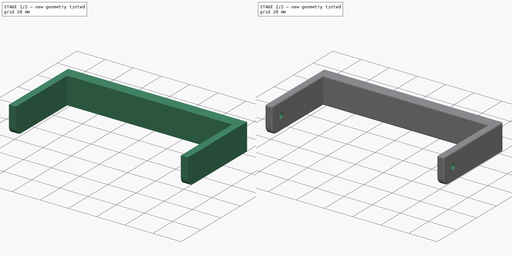
[diagram: build sequence overview — one tinted view per stage of 2, left to right]
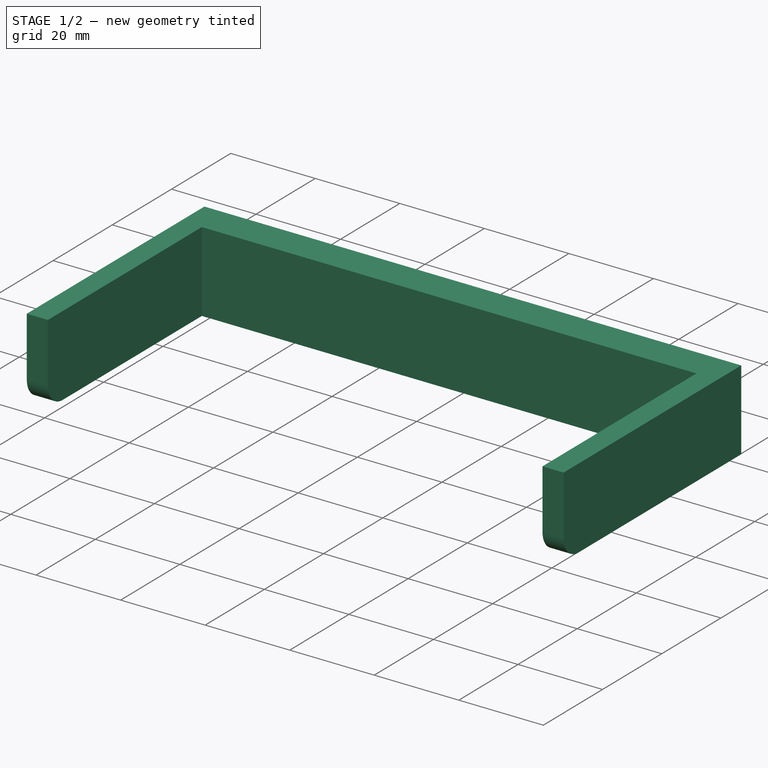
[diagram: stage 1 of 2 — iso view after this stage's code; geometry added in this stage tinted green]
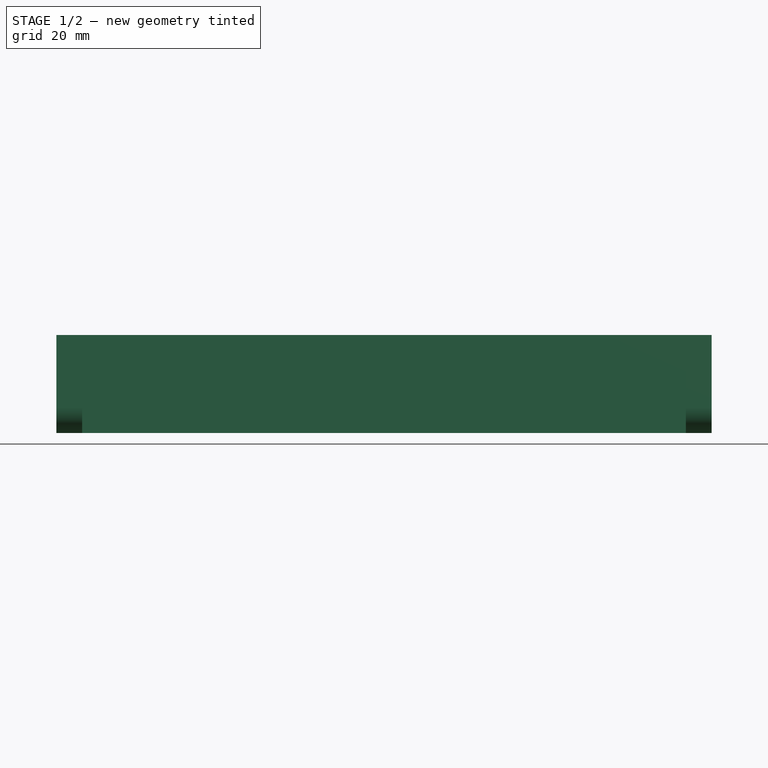
[diagram: stage 1 of 2 — front view after this stage's code; geometry added in this stage tinted green]
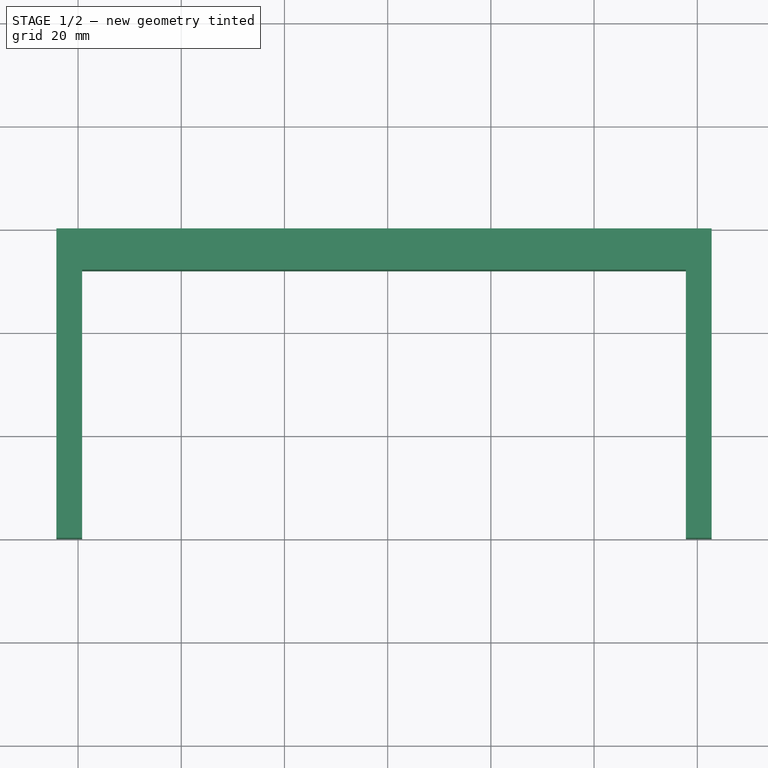
[diagram: stage 1 of 2 — top view after this stage's code; geometry added in this stage tinted green]
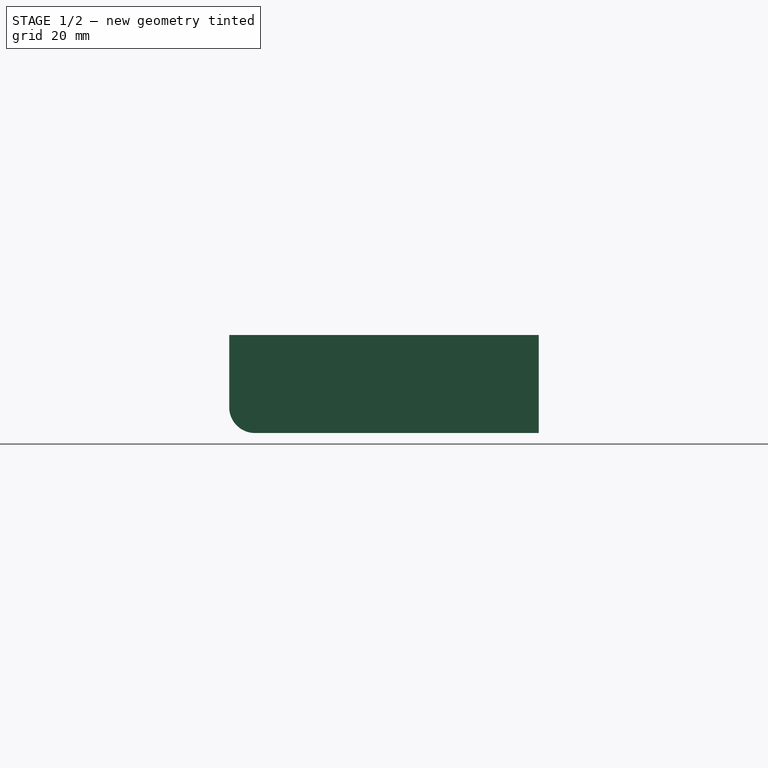
[diagram: stage 1 of 2 — right view after this stage's code; geometry added in this stage tinted green]
FCSTD DOCUMENT  (FreeCAD 0.16R)
Label: poignet
License: All rights reserved
LicenseURL: http://en.wikipedia.org/wiki/All_rights_reserved
objects: Sketcher::SketchObject×2, PartDesign::Fillet×2, PartDesign::Pad×1, PartDesign::Pocket×1
note: 8 computed .brp shape members not serialized (recipe doc carries the construction recipe); baked Part::Feature solids carry a one-line shape summary decoded from their .brp

FEATURE [Sketcher::SketchObject] Sketch  label="main form"
  sketch-geometry (8):
    g0: LineSegment StartX=-104.21 StartY=0 StartZ=0 EndX=-99.2105 EndY=0 EndZ=0
    g1: LineSegment StartX=-99.2105 StartY=0 StartZ=0 EndX=-99.2105 EndY=52 EndZ=0
    g2: LineSegment StartX=-99.2105 StartY=52 StartZ=0 EndX=17.7895 EndY=52 EndZ=0
    g3: LineSegment StartX=17.7895 StartY=52 StartZ=0 EndX=17.7895 EndY=0 EndZ=0
    g4: LineSegment StartX=17.7895 StartY=0 StartZ=0 EndX=22.7895 EndY=0 EndZ=0
    g5: LineSegment StartX=22.7895 StartY=0 StartZ=0 EndX=22.7895 EndY=60 EndZ=0
    g6: LineSegment StartX=22.7895 StartY=60 StartZ=0 EndX=-104.21 EndY=60 EndZ=0
    g7: LineSegment StartX=-104.21 StartY=60 StartZ=0 EndX=-104.21 EndY=0 EndZ=0
  constraints (22):
    c: PointOnObject(g0,g-1)
    c: Coincident(g0,g1)
    c: Vertical(g1)
    c: Coincident(g1,g2)
    c: Horizontal(g2)
    c: Coincident(g2,g3)
    c: Coincident(g4,g5)
    c: Vertical(g5)
    c: Coincident(g5,g6)
    c: Coincident(g6,g7)
    c: Coincident(g7,g0)
    c: Vertical(g7)
    c: DistanceX(g6,g6) = 127
    c: DistanceX(g2,g2) = 117
    c: DistanceX(g4,g4) = 5
    c: DistanceX(g0,g0) = 5
    c: DistanceY(g3,g3) = 52
    c: Horizontal(g0)
    c: Horizontal(g4)
    c: Parallel(g4,g6)
    c: Perpendicular(g2,g3)
    c: DistanceY(g1,g1) = 52
FEATURE [PartDesign::Pad] Pad
  Length = 19
  Length2 = 100
  Sketch = -> Sketch
  Type = 0
FEATURE [PartDesign::Fillet] Fillet  label="5mm fillet"
  Base = -> Pad [Edge3,Edge15]
  Radius = 5
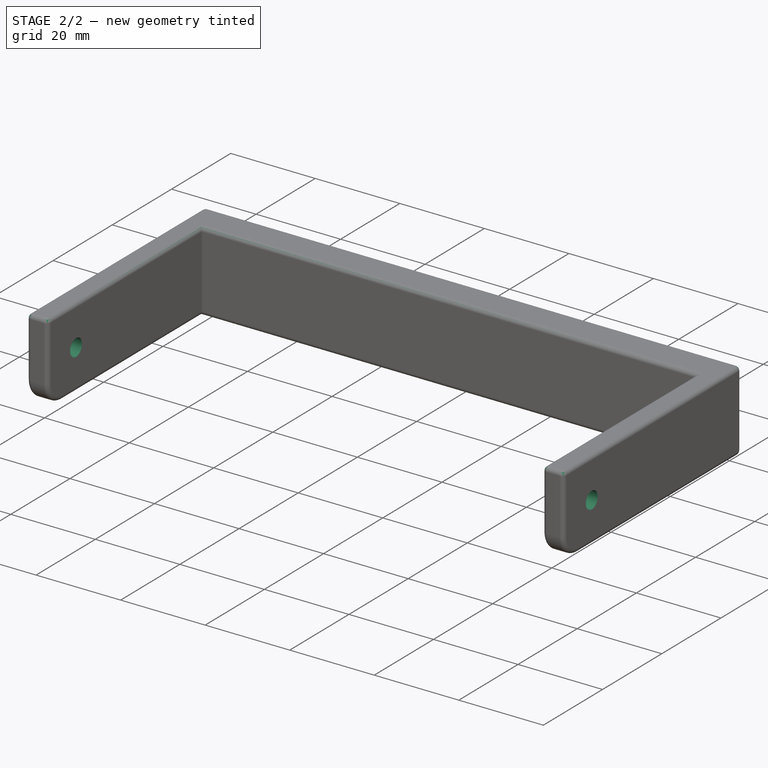
[diagram: stage 2 of 2 — iso view after this stage's code; geometry added in this stage tinted green]
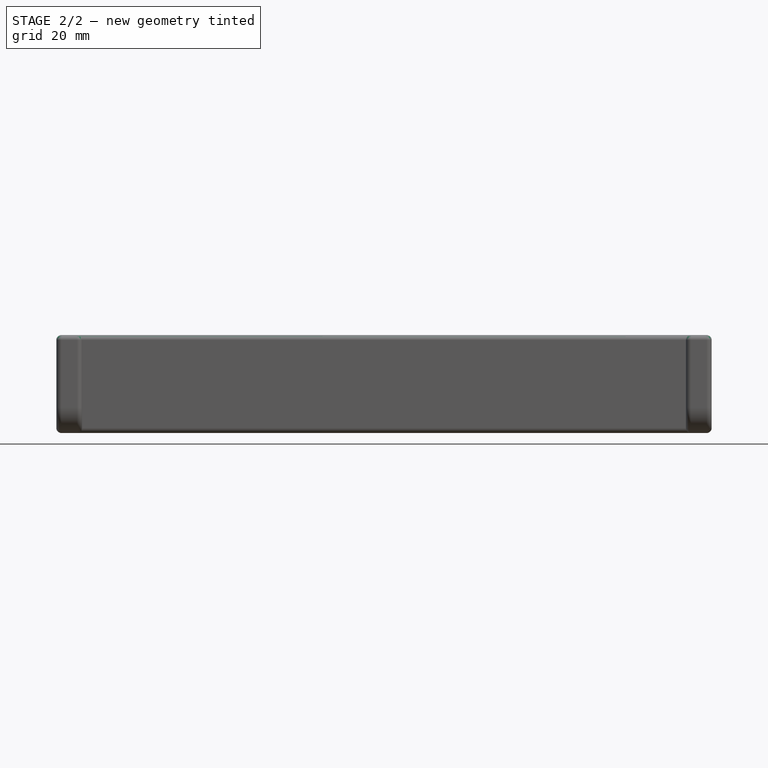
[diagram: stage 2 of 2 — front view after this stage's code; geometry added in this stage tinted green]
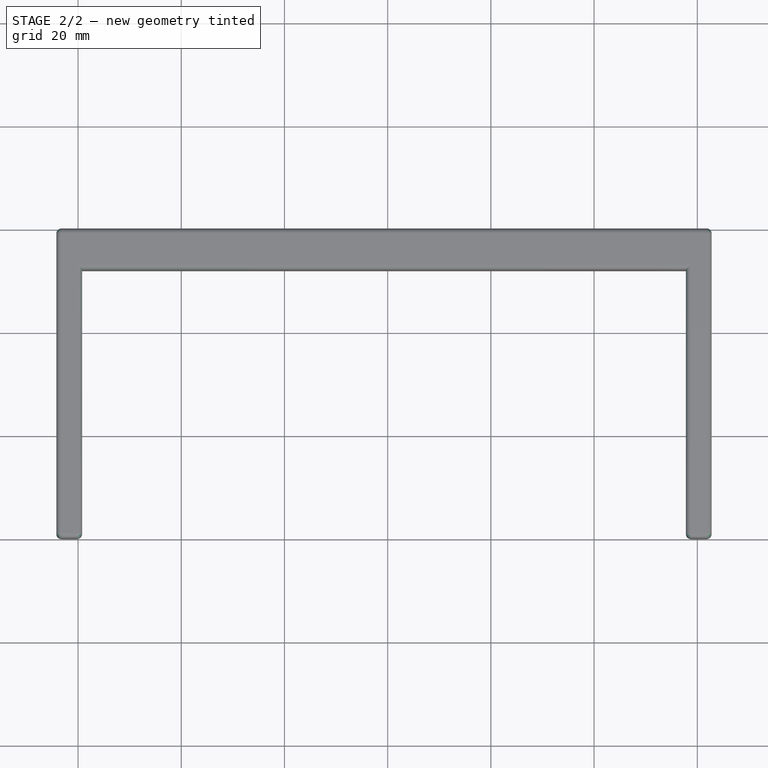
[diagram: stage 2 of 2 — top view after this stage's code; geometry added in this stage tinted green]
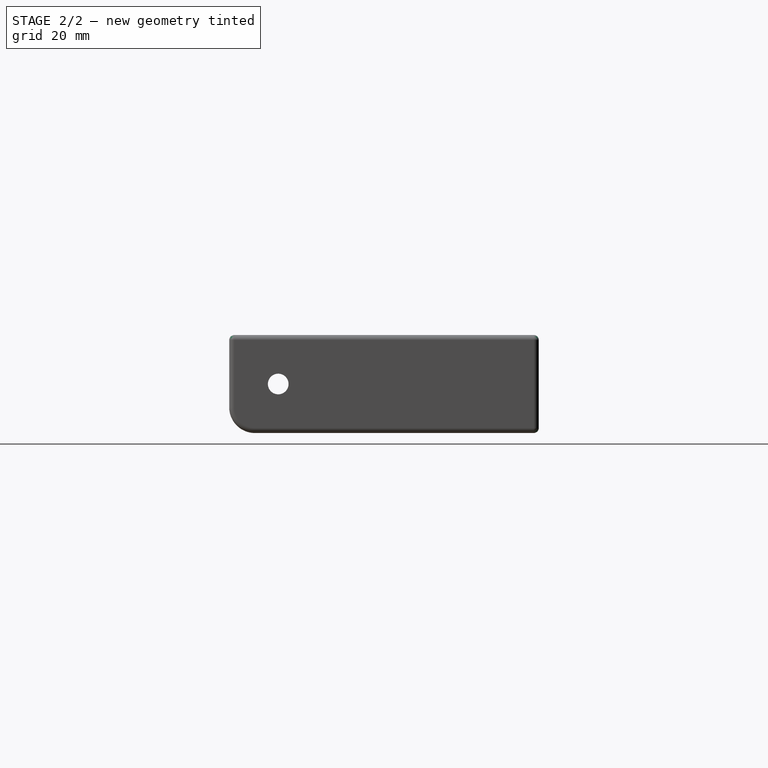
[diagram: stage 2 of 2 — right view after this stage's code; geometry added in this stage tinted green]
FEATURE [PartDesign::Fillet] Fillet001  label="1mm fillet"
  Base = -> Fillet [Edge19,Edge20,Edge17,Edge11,Edge12,Edge7,Edge21,Edge23,Edge30,Edge27,Edge15,Edge24,Edge16,Edge8,Edge13,Edge14,Edge3,Edge1,Edge4,Edge6,Edge29,Edge26,Edge5,Edge10]
  Radius = 1
FEATURE [Sketcher::SketchObject] Sketch001  label="hole"
  Placement = pos=(22.7895,0,0) rot=(0.57735,0.57735,0.57735;2.0944rad)
  Support = -> Fillet001 [Face34]
  sketch-geometry (1):
    g0: Circle CenterX=9.5 CenterY=9.5 CenterZ=0 NormalX=0 NormalY=0 NormalZ=1 Radius=2
  constraints (3):
    c: DistanceX(g0) = 9.5
    c: DistanceY(g-1,g0) = 9.5
    c: Radius(g0) = 2
FEATURE [PartDesign::Pocket] Pocket
  Length = 32
  Sketch = -> Sketch001
  Type = 1
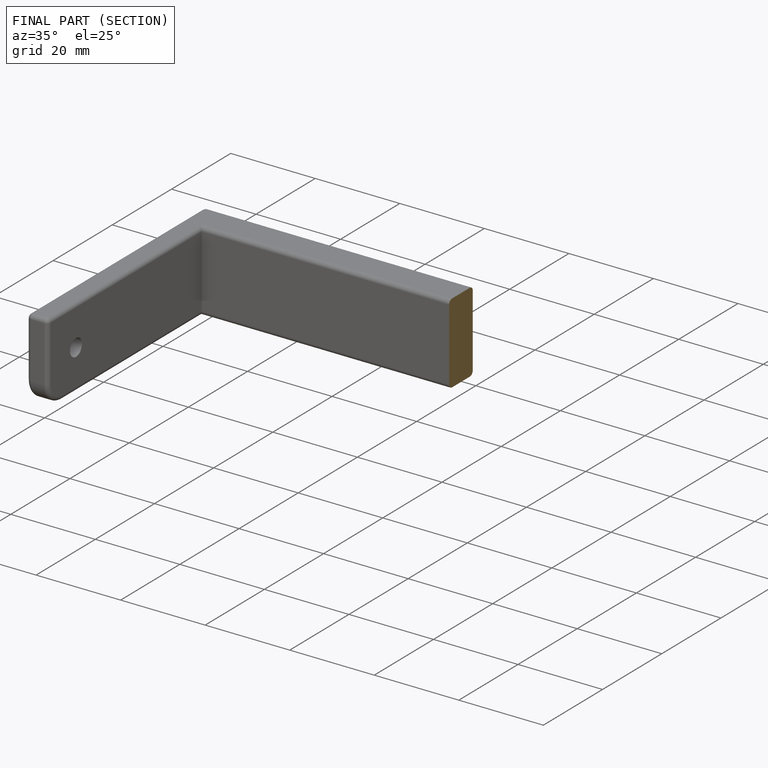
[diagram: finished part — half-section view (interior)]
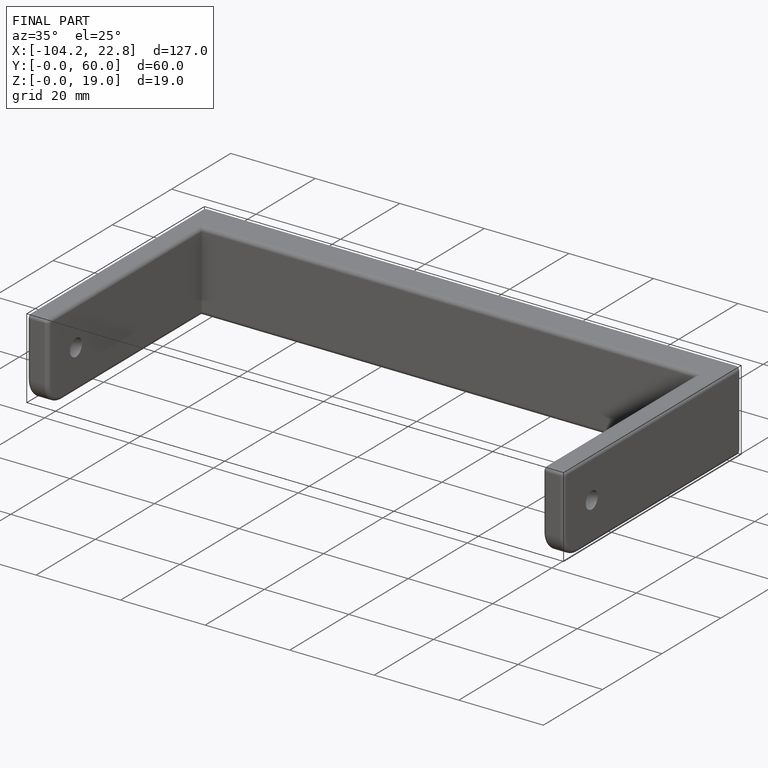
[diagram: finished part — iso view with bounding-box wireframe]
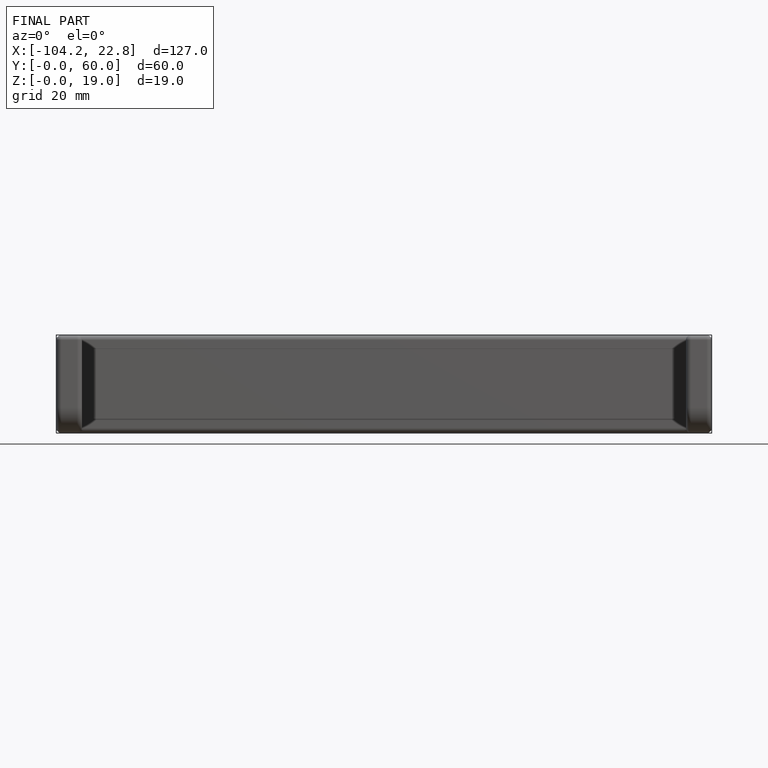
[diagram: finished part — front view with bounding-box wireframe]
